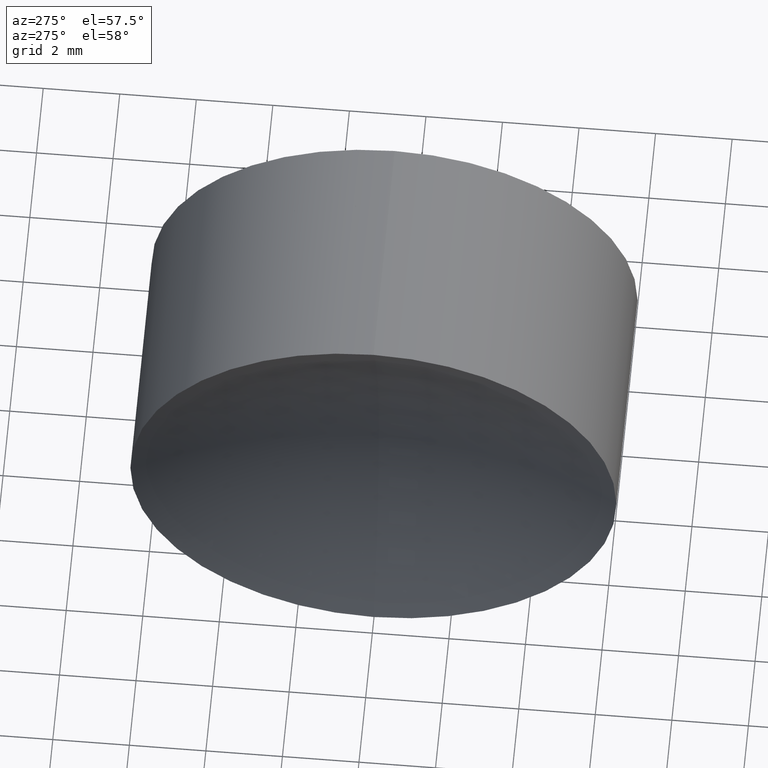
[diagram: clean part render]
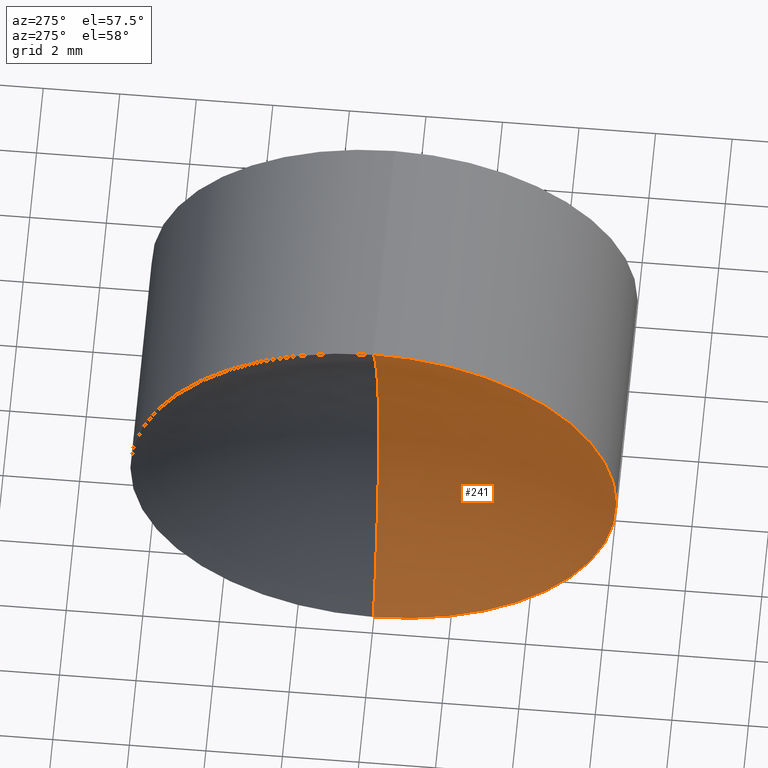
[diagram: same view with one face highlighted and labeled with its STEP entity id]
A machine part, auxiliary view. The second image highlights one B-rep face of the part: STEP entity #241.
In plain terms, the highlighted spherical surface has radius 13.5 mm.
Its self-contained STEP definition (entity closure, byte-faithful):
#28 = DIRECTION ( 'NONE',  ( 0.0000000000000000000, -1.224646799147353200E-016, 1.000000000000000000 ) ) ;
#40 = CARTESIAN_POINT ( 'NONE',  ( 216.4005994415584600, 0.0000000000000000000, -1.048218187111863300E-025 ) ) ;
#49 = FACE_OUTER_BOUND ( 'NONE', #137, .T. ) ;
#55 = CARTESIAN_POINT ( 'NONE',  ( 228.3139323085608800, 0.0000000000000000000, -4.209049715015568400E-014 ) ) ;
#56 = SPHERICAL_SURFACE ( 'NONE', #235, 13.49999999999999800 ) ;
#62 = DIRECTION ( 'NONE',  ( 0.0000000000000000000, 0.0000000000000000000, -1.000000000000000000 ) ) ;
#66 = EDGE_CURVE ( 'NONE', #139, #126, #200, .T. ) ;
#82 = ORIENTED_EDGE ( 'NONE', *, *, #66, .T. ) ;
#88 = CARTESIAN_POINT ( 'NONE',  ( 228.3139323085608800, 0.0000000000000000000, 6.349999999999999600 ) ) ;
#94 = ORIENTED_EDGE ( 'NONE', *, *, #298, .F. ) ;
#123 = CIRCLE ( 'NONE', #225, 13.49999999999999800 ) ;
#126 = VERTEX_POINT ( 'NONE', #88 ) ;
#134 = DIRECTION ( 'NONE',  ( -1.000000000000000000, -0.0000000000000000000, 1.836970198721029700E-016 ) ) ;
#137 = EDGE_LOOP ( 'NONE', ( #94, #265, #82 ) ) ;
#139 = VERTEX_POINT ( 'NONE', #337 ) ;
#164 = AXIS2_PLACEMENT_3D ( 'NONE', #345, #271, #62 ) ;
#181 = DIRECTION ( 'NONE',  ( 0.0000000000000000000, 0.0000000000000000000, 1.000000000000000000 ) ) ;
#188 = VERTEX_POINT ( 'NONE', #329 ) ;
#189 = CIRCLE ( 'NONE', #164, 13.49999999999999800 ) ;
#200 = CIRCLE ( 'NONE', #320, 6.350000000000042300 ) ;
#225 = AXIS2_PLACEMENT_3D ( 'NONE', #319, #236, #28 ) ;
#235 = AXIS2_PLACEMENT_3D ( 'NONE', #40, #278, #288 ) ;
#236 = DIRECTION ( 'NONE',  ( 2.249639673992786400E-032, 1.000000000000000000, 1.224646799147353200E-016 ) ) ;
#238 = EDGE_CURVE ( 'NONE', #188, #139, #123, .T. ) ;
#241 = ADVANCED_FACE ( 'NONE', ( #49 ), #56, .F. ) ;
#265 = ORIENTED_EDGE ( 'NONE', *, *, #238, .T. ) ;
#271 = DIRECTION ( 'NONE',  ( 0.0000000000000000000, -1.000000000000000000, 0.0000000000000000000 ) ) ;
#278 = DIRECTION ( 'NONE',  ( -0.0000000000000000000, 1.000000000000000000, 0.0000000000000000000 ) ) ;
#288 = DIRECTION ( 'NONE',  ( 0.0000000000000000000, 0.0000000000000000000, 1.000000000000000000 ) ) ;
#298 = EDGE_CURVE ( 'NONE', #188, #126, #189, .T. ) ;
#319 = CARTESIAN_POINT ( 'NONE',  ( 216.4005994415584600, 0.0000000000000000000, -1.048218187111863300E-025 ) ) ;
#320 = AXIS2_PLACEMENT_3D ( 'NONE', #55, #134, #181 ) ;
#329 = CARTESIAN_POINT ( 'NONE',  ( 229.9005994415584300, 0.0000000000000000000, -1.653273178953748100E-015 ) ) ;
#337 = CARTESIAN_POINT ( 'NONE',  ( 228.3139323085608800, 7.776507174585744400E-016, -6.350000000000044900 ) ) ;
#345 = CARTESIAN_POINT ( 'NONE',  ( 216.4005994415584600, 0.0000000000000000000, -1.048218187111863300E-025 ) ) ;